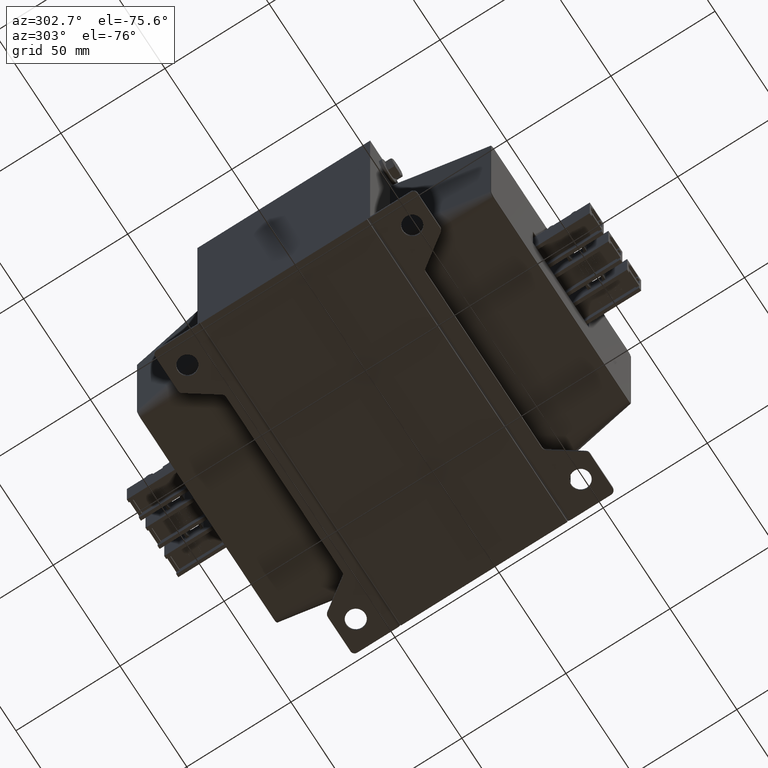
[diagram: clean part render]
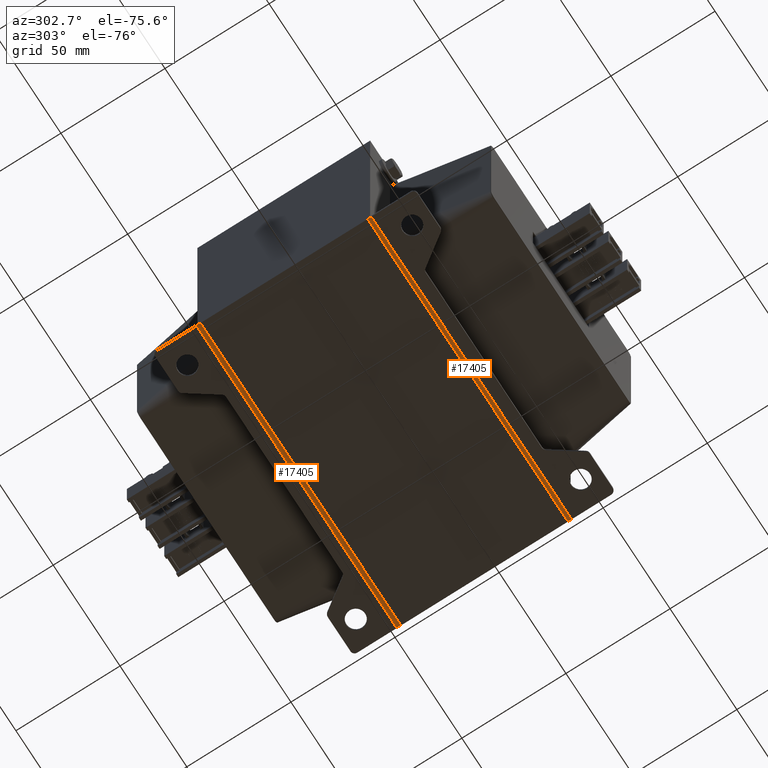
[diagram: same view with one multi-face feature highlighted, each face labeled with its STEP entity id]
A machine part, auxiliary view. The highlighted faces form ONE feature: a constant-radius fillet chain: 2 tangent blend faces with common blend radius 2 mm. The faces share edges in the B-rep.
Their STEP definitions:
[1] entity #17405 (Cylinder):
#3295=LINE('',#39685,#5101);
#3296=LINE('',#39689,#5102);
#5101=VECTOR('',#23036,10.);
#5102=VECTOR('',#23039,10.);
#5319=CYLINDRICAL_SURFACE('',#19071,2.);
#6202=FACE_OUTER_BOUND('',#7280,.T.);
#7280=EDGE_LOOP('',(#16068,#16069,#16070,#16071));
#7653=CIRCLE('',#19072,2.);
#7654=CIRCLE('',#19073,2.);
#9172=VERTEX_POINT('',#39667);
#9175=VERTEX_POINT('',#39675);
#9176=VERTEX_POINT('',#39686);
#9177=VERTEX_POINT('',#39688);
#11500=EDGE_CURVE('',#9175,#9172,#3295,.T.);
#11501=EDGE_CURVE('',#9176,#9175,#7653,.T.);
#11502=EDGE_CURVE('',#9177,#9176,#3296,.T.);
#11503=EDGE_CURVE('',#9172,#9177,#7654,.T.);
#16068=ORIENTED_EDGE('',*,*,#11500,.F.);
#16069=ORIENTED_EDGE('',*,*,#11501,.F.);
#16070=ORIENTED_EDGE('',*,*,#11502,.F.);
#16071=ORIENTED_EDGE('',*,*,#11503,.F.);
#17405=ADVANCED_FACE('',(#6202),#5319,.T.);
#19071=AXIS2_PLACEMENT_3D('',#39684,#23034,#23035);
#19072=AXIS2_PLACEMENT_3D('',#39687,#23037,#23038);
#19073=AXIS2_PLACEMENT_3D('',#39690,#23040,#23041);
#23034=DIRECTION('center_axis',(4.19917910082817E-16,0.,1.));
#23035=DIRECTION('ref_axis',(0.,-1.,0.));
#23036=DIRECTION('',(-4.25627176633952E-16,0.,-1.));
#23037=DIRECTION('center_axis',(4.19917910082817E-16,0.,1.));
#23038=DIRECTION('ref_axis',(0.,-1.,0.));
#23039=DIRECTION('',(4.18184005942142E-16,0.,1.));
#23040=DIRECTION('center_axis',(-4.19917910082817E-16,0.,-1.));
#23041=DIRECTION('ref_axis',(1.,0.,0.));
#39667=CARTESIAN_POINT('',(-4.27225413913306E-16,2.,-7.65267334730385E-16));
#39675=CARTESIAN_POINT('',(6.36706841231344E-14,2.,150.));
#39684=CARTESIAN_POINT('Origin',(-1.99999999999997,2.,75.));
#39685=CARTESIAN_POINT('',(3.16217293546106E-14,2.,75.));
#39686=CARTESIAN_POINT('',(-1.99999999999994,0.,150.));
#39687=CARTESIAN_POINT('Origin',(-1.99999999999994,2.,150.));
#39688=CARTESIAN_POINT('',(-2.,0.,0.));
#39689=CARTESIAN_POINT('',(-1.99999999999998,0.,37.5));
#39690=CARTESIAN_POINT('Origin',(-2.,2.,0.));
[2] entity #17405 (Cylinder):
#3295=LINE('',#39685,#5101);
#3296=LINE('',#39689,#5102);
#5101=VECTOR('',#23036,10.);
#5102=VECTOR('',#23039,10.);
#5319=CYLINDRICAL_SURFACE('',#19071,2.);
#6202=FACE_OUTER_BOUND('',#7280,.T.);
#7280=EDGE_LOOP('',(#16068,#16069,#16070,#16071));
#7653=CIRCLE('',#19072,2.);
#7654=CIRCLE('',#19073,2.);
#9172=VERTEX_POINT('',#39667);
#9175=VERTEX_POINT('',#39675);
#9176=VERTEX_POINT('',#39686);
#9177=VERTEX_POINT('',#39688);
#11500=EDGE_CURVE('',#9175,#9172,#3295,.T.);
#11501=EDGE_CURVE('',#9176,#9175,#7653,.T.);
#11502=EDGE_CURVE('',#9177,#9176,#3296,.T.);
#11503=EDGE_CURVE('',#9172,#9177,#7654,.T.);
#16068=ORIENTED_EDGE('',*,*,#11500,.F.);
#16069=ORIENTED_EDGE('',*,*,#11501,.F.);
#16070=ORIENTED_EDGE('',*,*,#11502,.F.);
#16071=ORIENTED_EDGE('',*,*,#11503,.F.);
#17405=ADVANCED_FACE('',(#6202),#5319,.T.);
#19071=AXIS2_PLACEMENT_3D('',#39684,#23034,#23035);
#19072=AXIS2_PLACEMENT_3D('',#39687,#23037,#23038);
#19073=AXIS2_PLACEMENT_3D('',#39690,#23040,#23041);
#23034=DIRECTION('center_axis',(4.19917910082817E-16,0.,1.));
#23035=DIRECTION('ref_axis',(0.,-1.,0.));
#23036=DIRECTION('',(-4.25627176633952E-16,0.,-1.));
#23037=DIRECTION('center_axis',(4.19917910082817E-16,0.,1.));
#23038=DIRECTION('ref_axis',(0.,-1.,0.));
#23039=DIRECTION('',(4.18184005942142E-16,0.,1.));
#23040=DIRECTION('center_axis',(-4.19917910082817E-16,0.,-1.));
#23041=DIRECTION('ref_axis',(1.,0.,0.));
#39667=CARTESIAN_POINT('',(-4.27225413913306E-16,2.,-7.65267334730385E-16));
#39675=CARTESIAN_POINT('',(6.36706841231344E-14,2.,150.));
#39684=CARTESIAN_POINT('Origin',(-1.99999999999997,2.,75.));
#39685=CARTESIAN_POINT('',(3.16217293546106E-14,2.,75.));
#39686=CARTESIAN_POINT('',(-1.99999999999994,0.,150.));
#39687=CARTESIAN_POINT('Origin',(-1.99999999999994,2.,150.));
#39688=CARTESIAN_POINT('',(-2.,0.,0.));
#39689=CARTESIAN_POINT('',(-1.99999999999998,0.,37.5));
#39690=CARTESIAN_POINT('Origin',(-2.,2.,0.));